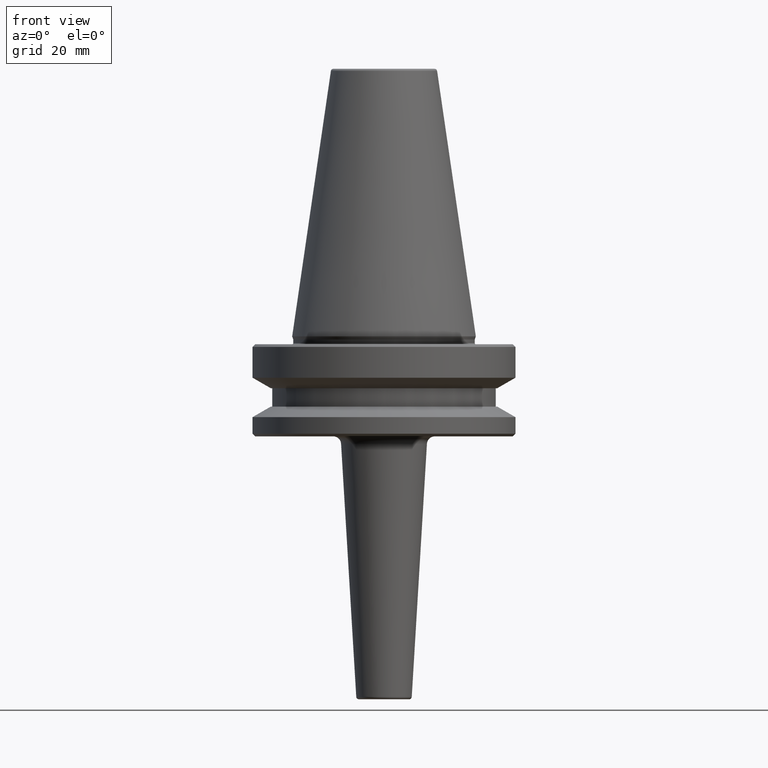
[diagram: clean part render]
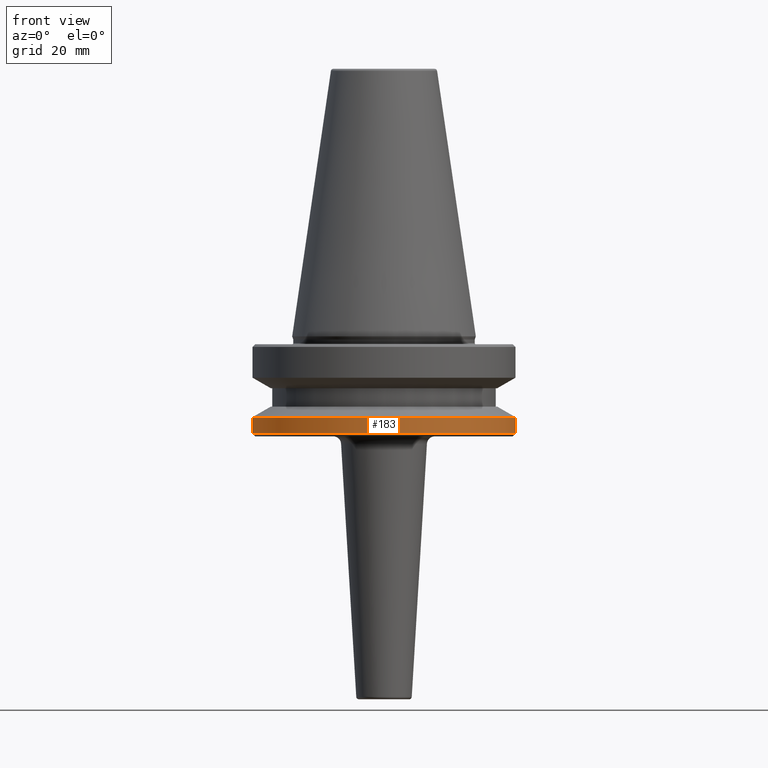
[diagram: same view with one face highlighted and labeled with its STEP entity id]
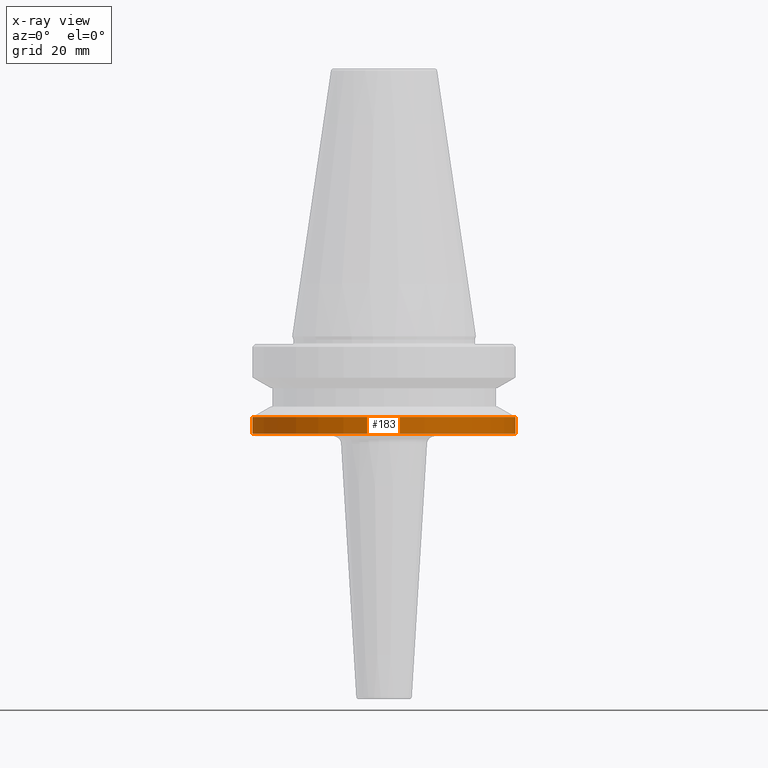
[diagram: x-ray of the same camera — body ghosted, the highlighted face saturated]
A machine part, front view. The second image highlights one B-rep face of the part: STEP entity #183.
The next image is the same camera in x-ray: the body ghosted, the highlighted face saturated — about 0% of this face is hidden behind the body in this view.
In plain terms, the highlighted cylindrical surface (partial cylindrical patch) has radius 50 mm, axis along (-0, -0, 1).
Its self-contained STEP definition (entity closure, byte-faithful):
#1 = EDGE_LOOP ( 'NONE', ( #883, #694, #118, #502 ) ) ;
#22 = VERTEX_POINT ( 'NONE', #421 ) ;
#33 = CARTESIAN_POINT ( 'NONE',  ( 50.00000000000000000, 0.0000000000000000000, -30.69977999677324500 ) ) ;
#34 = DIRECTION ( 'NONE',  ( -0.0000000000000000000, -0.0000000000000000000, 1.000000000000000000 ) ) ;
#52 = DIRECTION ( 'NONE',  ( 1.000000000000000000, 0.0000000000000000000, 0.0000000000000000000 ) ) ;
#57 = AXIS2_PLACEMENT_3D ( 'NONE', #435, #892, #52 ) ;
#58 = VERTEX_POINT ( 'NONE', #114 ) ;
#74 = VERTEX_POINT ( 'NONE', #982 ) ;
#77 = DIRECTION ( 'NONE',  ( 1.000000000000000000, 0.0000000000000000000, 0.0000000000000000000 ) ) ;
#114 = CARTESIAN_POINT ( 'NONE',  ( -50.00000000000000000, 6.123233995736766100E-015, -30.69977999677324500 ) ) ;
#118 = ORIENTED_EDGE ( 'NONE', *, *, #221, .T. ) ;
#134 = CIRCLE ( 'NONE', #840, 50.00000000000000000 ) ;
#165 = DIRECTION ( 'NONE',  ( -0.0000000000000000000, -0.0000000000000000000, 1.000000000000000000 ) ) ;
#183 = ADVANCED_FACE ( 'NONE', ( #584 ), #768, .T. ) ;
#208 = VECTOR ( 'NONE', #361, 1000.000000000000000 ) ;
#221 = EDGE_CURVE ( 'NONE', #74, #709, #535, .T. ) ;
#247 = AXIS2_PLACEMENT_3D ( 'NONE', #928, #34, #553 ) ;
#320 = CARTESIAN_POINT ( 'NONE',  ( 50.00000000000000000, 0.0000000000000000000, 124.5046326327850600 ) ) ;
#336 = EDGE_CURVE ( 'NONE', #58, #709, #134, .T. ) ;
#361 = DIRECTION ( 'NONE',  ( -0.0000000000000000000, -0.0000000000000000000, 1.000000000000000000 ) ) ;
#400 = LINE ( 'NONE', #680, #208 ) ;
#421 = CARTESIAN_POINT ( 'NONE',  ( -50.00000000000000000, 6.123233995736766100E-015, -37.00000000000002100 ) ) ;
#435 = CARTESIAN_POINT ( 'NONE',  ( 0.0000000000000000000, 0.0000000000000000000, -37.00000000000002100 ) ) ;
#502 = ORIENTED_EDGE ( 'NONE', *, *, #336, .F. ) ;
#535 = LINE ( 'NONE', #320, #568 ) ;
#553 = DIRECTION ( 'NONE',  ( 1.000000000000000000, 0.0000000000000000000, 0.0000000000000000000 ) ) ;
#568 = VECTOR ( 'NONE', #754, 1000.000000000000000 ) ;
#583 = EDGE_CURVE ( 'NONE', #22, #74, #650, .T. ) ;
#584 = FACE_OUTER_BOUND ( 'NONE', #1, .T. ) ;
#650 = CIRCLE ( 'NONE', #57, 50.00000000000000000 ) ;
#657 = EDGE_CURVE ( 'NONE', #22, #58, #400, .T. ) ;
#680 = CARTESIAN_POINT ( 'NONE',  ( -50.00000000000000000, 6.123233995736766100E-015, 124.5046326327850600 ) ) ;
#694 = ORIENTED_EDGE ( 'NONE', *, *, #583, .T. ) ;
#698 = CARTESIAN_POINT ( 'NONE',  ( 0.0000000000000000000, 0.0000000000000000000, -30.69977999677324500 ) ) ;
#709 = VERTEX_POINT ( 'NONE', #33 ) ;
#754 = DIRECTION ( 'NONE',  ( -0.0000000000000000000, -0.0000000000000000000, 1.000000000000000000 ) ) ;
#768 = CYLINDRICAL_SURFACE ( 'NONE', #247, 50.00000000000000000 ) ;
#840 = AXIS2_PLACEMENT_3D ( 'NONE', #698, #165, #77 ) ;
#883 = ORIENTED_EDGE ( 'NONE', *, *, #657, .F. ) ;
#892 = DIRECTION ( 'NONE',  ( -0.0000000000000000000, -0.0000000000000000000, 1.000000000000000000 ) ) ;
#928 = CARTESIAN_POINT ( 'NONE',  ( 0.0000000000000000000, 0.0000000000000000000, 124.5046326327850600 ) ) ;
#982 = CARTESIAN_POINT ( 'NONE',  ( 50.00000000000000000, 0.0000000000000000000, -37.00000000000002100 ) ) ;